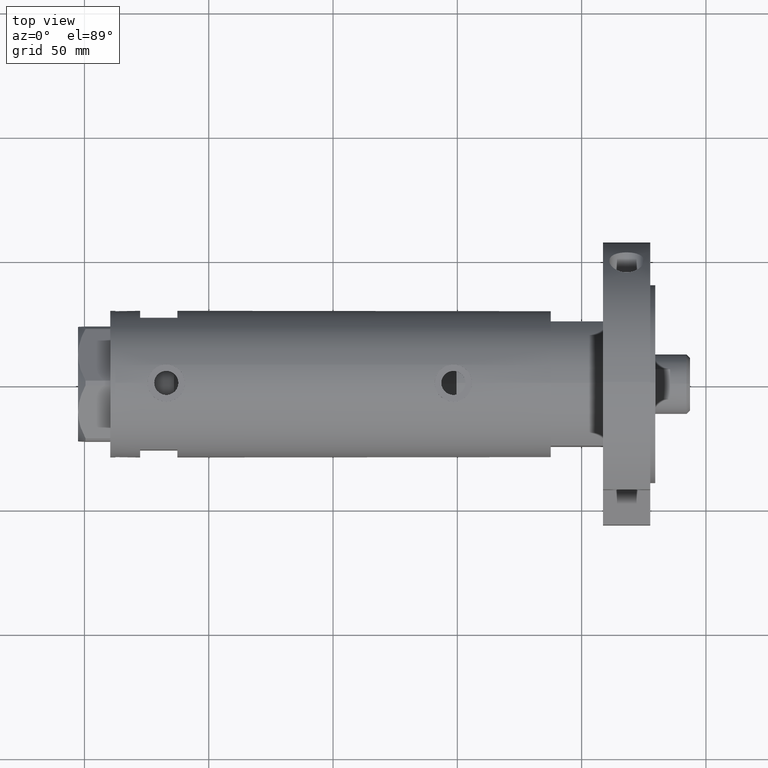
[diagram: clean part render]
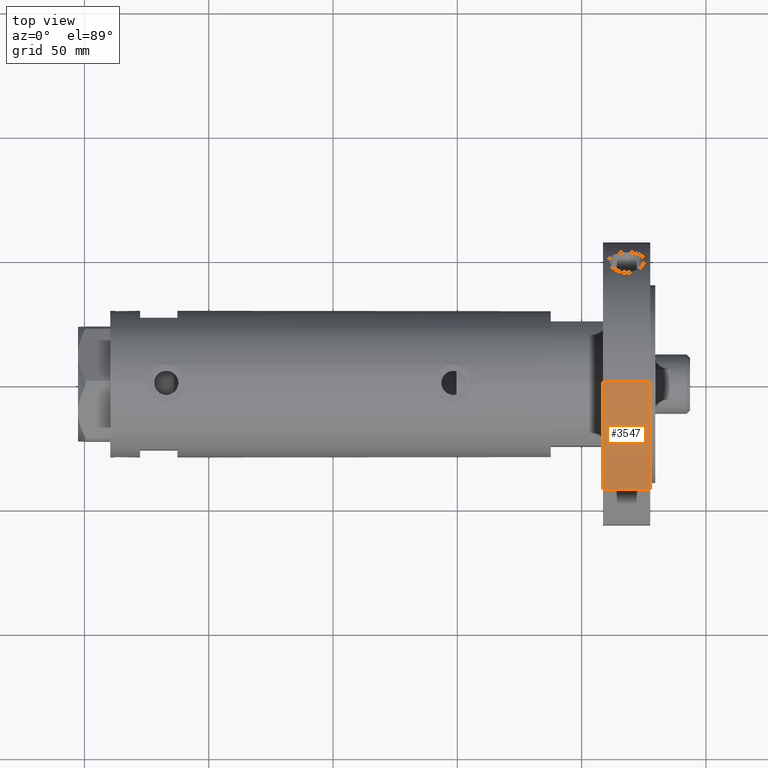
[diagram: same view with one face highlighted and labeled with its STEP entity id]
A machine part, top view. The second image highlights one B-rep face of the part: STEP entity #3547.
In plain terms, the highlighted cylindrical surface (partial cylindrical patch) has radius 57 mm, axis along (-1, -0, 0).
Its self-contained STEP definition (entity closure, byte-faithful):
#19 = VERTEX_POINT ( 'NONE', #591 ) ;
#88 = DIRECTION ( 'NONE',  ( -1.000000000000000000, 0.000000000000000000, 0.000000000000000000 ) ) ;
#133 = EDGE_CURVE ( 'NONE', #2520, #5117, #2158, .T. ) ;
#366 = DIRECTION ( 'NONE',  ( 1.000000000000000000, 0.000000000000000000, 0.000000000000000000 ) ) ;
#591 = CARTESIAN_POINT ( 'NONE',  ( 37.43945616129992970, 42.98007820311755012, 0.000000000000000000 ) ) ;
#616 = FACE_OUTER_BOUND ( 'NONE', #2769, .T. ) ;
#797 = CARTESIAN_POINT ( 'NONE',  ( 37.43945616129992970, 42.98007820311755012, 19.00000000000000000 ) ) ;
#823 = EDGE_CURVE ( 'NONE', #4618, #19, #4047, .T. ) ;
#935 = EDGE_CURVE ( 'NONE', #2520, #4618, #4168, .T. ) ;
#1156 = LINE ( 'NONE', #2121, #5848 ) ;
#1417 = CARTESIAN_POINT ( 'NONE',  ( 0.000000000000000000, 0.000000000000000000, 0.000000000000000000 ) ) ;
#1448 = ORIENTED_EDGE ( 'NONE', *, *, #935, .T. ) ;
#1820 = DIRECTION ( 'NONE',  ( -0.000000000000000000, -0.000000000000000000, -1.000000000000000000 ) ) ;
#1919 = DIRECTION ( 'NONE',  ( -0.000000000000000000, -0.000000000000000000, -1.000000000000000000 ) ) ;
#1962 = AXIS2_PLACEMENT_3D ( 'NONE', #5614, #3796, #3241 ) ;
#2121 = CARTESIAN_POINT ( 'NONE',  ( 37.43945616129992970, 42.98007820311755012, 0.000000000000000000 ) ) ;
#2136 = CARTESIAN_POINT ( 'NONE',  ( 57.00000000000000000, 6.980486755139912911E-15, 0.000000000000000000 ) ) ;
#2158 = CIRCLE ( 'NONE', #1962, 57.00000000000000000 ) ;
#2418 = CARTESIAN_POINT ( 'NONE',  ( 57.00000000000000000, 6.980486755139912911E-15, 19.00000000000000000 ) ) ;
#2510 = CYLINDRICAL_SURFACE ( 'NONE', #5343, 57.00000000000000000 ) ;
#2520 = VERTEX_POINT ( 'NONE', #2418 ) ;
#2730 = ORIENTED_EDGE ( 'NONE', *, *, #4136, .T. ) ;
#2750 = DIRECTION ( 'NONE',  ( 0.000000000000000000, 0.000000000000000000, 1.000000000000000000 ) ) ;
#2769 = EDGE_LOOP ( 'NONE', ( #5923, #1448, #5151, #2730 ) ) ;
#2858 = AXIS2_PLACEMENT_3D ( 'NONE', #1417, #2750, #366 ) ;
#3241 = DIRECTION ( 'NONE',  ( 1.000000000000000000, 0.000000000000000000, 0.000000000000000000 ) ) ;
#3547 = ADVANCED_FACE ( 'NONE', ( #616 ), #2510, .T. ) ;
#3559 = VECTOR ( 'NONE', #1820, 1000.000000000000000 ) ;
#3796 = DIRECTION ( 'NONE',  ( 0.000000000000000000, 0.000000000000000000, 1.000000000000000000 ) ) ;
#3864 = CARTESIAN_POINT ( 'NONE',  ( 0.000000000000000000, 0.000000000000000000, 19.00000000000000000 ) ) ;
#4047 = CIRCLE ( 'NONE', #2858, 57.00000000000000000 ) ;
#4133 = CARTESIAN_POINT ( 'NONE',  ( 57.00000000000000000, 6.980486755139912911E-15, 19.00000000000000000 ) ) ;
#4136 = EDGE_CURVE ( 'NONE', #19, #5117, #1156, .T. ) ;
#4168 = LINE ( 'NONE', #4133, #3559 ) ;
#4586 = DIRECTION ( 'NONE',  ( -0.000000000000000000, -0.000000000000000000, 1.000000000000000000 ) ) ;
#4618 = VERTEX_POINT ( 'NONE', #2136 ) ;
#5117 = VERTEX_POINT ( 'NONE', #797 ) ;
#5151 = ORIENTED_EDGE ( 'NONE', *, *, #823, .T. ) ;
#5343 = AXIS2_PLACEMENT_3D ( 'NONE', #3864, #1919, #88 ) ;
#5614 = CARTESIAN_POINT ( 'NONE',  ( 0.000000000000000000, 0.000000000000000000, 19.00000000000000000 ) ) ;
#5848 = VECTOR ( 'NONE', #4586, 1000.000000000000000 ) ;
#5923 = ORIENTED_EDGE ( 'NONE', *, *, #133, .F. ) ;